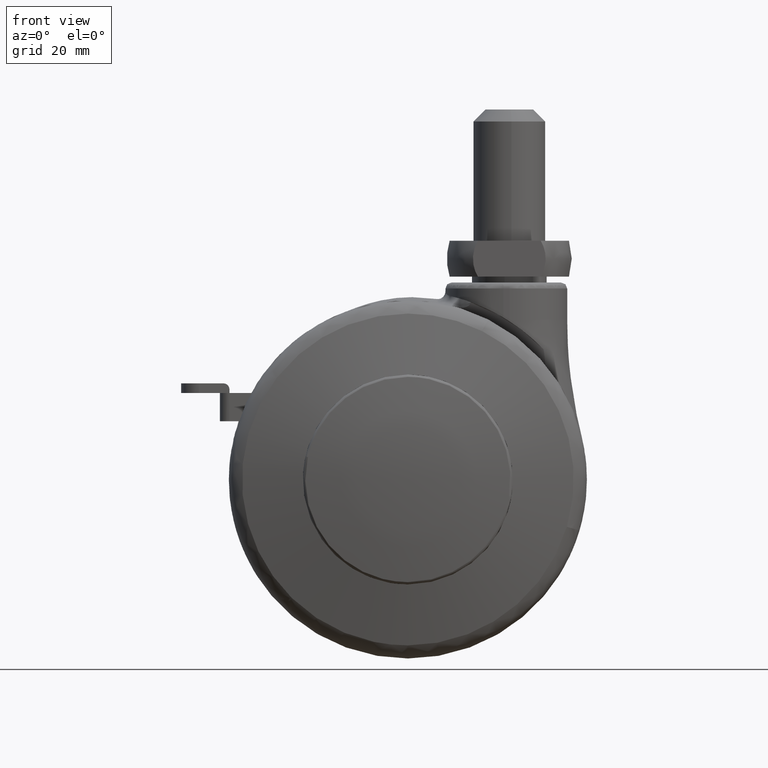
[diagram: clean part render]
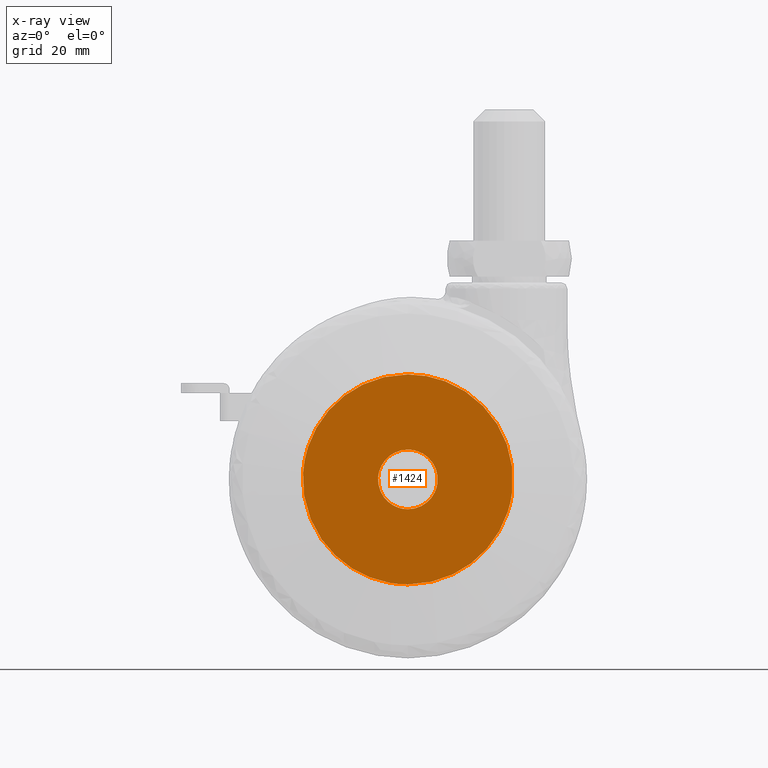
[diagram: x-ray — body ghosted, one internal face saturated and labeled with its STEP entity id]
A machine part, front view, then the same camera in x-ray: the body is ghosted and one INTERNAL B-rep face — a face not visible from any outside direction — is saturated and labeled: STEP entity #1424.
In plain terms, the highlighted face is a freeform B-spline surface patch.
Its self-contained STEP definition (entity closure, byte-faithful):
#100=CARTESIAN_POINT('',(-17.567173093975370,-17.423049182183458,1.074443803182527));
#101=VERTEX_POINT('',#100);
#107=CARTESIAN_POINT('',(0.0,-17.423049182183451,17.600000000000001));
#108=VERTEX_POINT('',#107);
#109=CARTESIAN_POINT('',(0.0,-17.423049182183451,17.600000000000001));
#110=CARTESIAN_POINT('',(-16.556436684948405,-17.423049182183458,17.599999999999998));
#111=CARTESIAN_POINT('',(-17.567173093975363,-17.423049182183462,1.074443803182527));
#119=(BOUNDED_CURVE()B_SPLINE_CURVE(2,(#109,#110,#111),.UNSPECIFIED.,.F.,.U.)B_SPLINE_CURVE_WITH_KNOTS((3,3),(0.500000000000000,0.739333065301805),.UNSPECIFIED.)CURVE()GEOMETRIC_REPRESENTATION_ITEM()RATIONAL_B_SPLINE_CURVE((1.0,0.719603872541056,0.976072262550150))REPRESENTATION_ITEM(''));
#120=EDGE_CURVE('',#108,#101,#119,.T.);
#122=CARTESIAN_POINT('',(17.476971121001860,-17.423049182183451,-2.077373446159650));
#123=VERTEX_POINT('',#122);
#124=CARTESIAN_POINT('',(17.476971121001856,-17.423049182183448,-2.077373446159650));
#125=CARTESIAN_POINT('',(17.599999999999994,-17.423049182183444,-1.042329810242494));
#126=CARTESIAN_POINT('',(17.600000000000001,-17.423049182183451,-1.653219E-015));
#127=CARTESIAN_POINT('',(17.600000000000005,-17.423049182183451,17.600000000000005));
#128=CARTESIAN_POINT('',(0.0,-17.423049182183451,17.600000000000001));
#136=(BOUNDED_CURVE()B_SPLINE_CURVE(2,(#124,#125,#126,#127,#128),.UNSPECIFIED.,.F.,.U.)B_SPLINE_CURVE_WITH_KNOTS((3,2,3),(0.229562754757628,0.250000000000000,0.500000000000000),.UNSPECIFIED.)CURVE()GEOMETRIC_REPRESENTATION_ITEM()RATIONAL_B_SPLINE_CURVE((0.956027305434425,0.976056277829127,1.0,0.707106781186548,1.0))REPRESENTATION_ITEM(''));
#137=EDGE_CURVE('',#123,#108,#136,.T.);
#185=CARTESIAN_POINT('',(0.0,-17.423049182183451,-17.600000000000001));
#186=VERTEX_POINT('',#185);
#187=CARTESIAN_POINT('',(0.0,-17.423049182183451,-17.600000000000001));
#188=CARTESIAN_POINT('',(15.631897853219106,-17.423049182183455,-17.599999999999998));
#189=CARTESIAN_POINT('',(17.476971121001860,-17.423049182183444,-2.077373446159651));
#197=(BOUNDED_CURVE()B_SPLINE_CURVE(2,(#187,#188,#189),.UNSPECIFIED.,.F.,.U.)B_SPLINE_CURVE_WITH_KNOTS((3,3),(0.0,0.229562754757628),.UNSPECIFIED.)CURVE()GEOMETRIC_REPRESENTATION_ITEM()RATIONAL_B_SPLINE_CURVE((1.0,0.731050503357421,0.956027305434425))REPRESENTATION_ITEM(''));
#198=EDGE_CURVE('',#186,#123,#197,.T.);
#200=CARTESIAN_POINT('',(-17.567173093975363,-17.423049182183462,1.074443803182527));
#201=CARTESIAN_POINT('',(-17.600000000000005,-17.423049182183455,0.537723373029767));
#202=CARTESIAN_POINT('',(-17.600000000000001,-17.423049182183451,-1.653219E-015));
#203=CARTESIAN_POINT('',(-17.600000000000005,-17.423049182183451,-17.600000000000005));
#204=CARTESIAN_POINT('',(0.0,-17.423049182183451,-17.600000000000001));
#212=(BOUNDED_CURVE()B_SPLINE_CURVE(2,(#200,#201,#202,#203,#204),.UNSPECIFIED.,.F.,.U.)B_SPLINE_CURVE_WITH_KNOTS((3,2,3),(0.739333065301805,0.750000000000000,1.0),.UNSPECIFIED.)CURVE()GEOMETRIC_REPRESENTATION_ITEM()RATIONAL_B_SPLINE_CURVE((0.976072262550150,0.987502908645491,1.0,0.707106781186548,1.0))REPRESENTATION_ITEM(''));
#213=EDGE_CURVE('',#101,#186,#212,.T.);
#256=CARTESIAN_POINT('',(4.965047631806412,-17.423049182183458,-0.590171173384073));
#257=VERTEX_POINT('',#256);
#258=CARTESIAN_POINT('',(0.0,-17.423049182183451,4.999999999999998));
#259=VERTEX_POINT('',#258);
#260=CARTESIAN_POINT('',(4.965047631806412,-17.423049182183455,-0.590171173384073));
#261=CARTESIAN_POINT('',(5.000000000000002,-17.423049182183455,-0.296120598360892));
#262=CARTESIAN_POINT('',(5.0,-17.423049182183451,-1.653219E-015));
#263=CARTESIAN_POINT('',(5.000000000000001,-17.423049182183451,4.999999999999997));
#264=CARTESIAN_POINT('',(0.0,-17.423049182183451,4.999999999999998));
#272=(BOUNDED_CURVE()B_SPLINE_CURVE(2,(#260,#261,#262,#263,#264),.UNSPECIFIED.,.F.,.U.)B_SPLINE_CURVE_WITH_KNOTS((3,2,3),(0.229562473508818,0.250000000000000,0.500000000000000),.UNSPECIFIED.)CURVE()GEOMETRIC_REPRESENTATION_ITEM()RATIONAL_B_SPLINE_CURVE((0.956026754174505,0.976055948325649,1.0,0.707106781186548,1.0))REPRESENTATION_ITEM(''));
#273=EDGE_CURVE('',#257,#259,#272,.T.);
#275=CARTESIAN_POINT('',(-4.990673992102717,-17.423049182183451,0.305242697782475));
#276=VERTEX_POINT('',#275);
#277=CARTESIAN_POINT('',(0.0,-17.423049182183451,4.999999999999998));
#278=CARTESIAN_POINT('',(-4.703530334324142,-17.423049182183451,4.999999999999998));
#279=CARTESIAN_POINT('',(-4.990673992102717,-17.423049182183451,0.305242697782475));
#287=(BOUNDED_CURVE()B_SPLINE_CURVE(2,(#277,#278,#279),.UNSPECIFIED.,.F.,.U.)B_SPLINE_CURVE_WITH_KNOTS((3,3),(0.500000000000000,0.739332962234486),.UNSPECIFIED.)CURVE()GEOMETRIC_REPRESENTATION_ITEM()RATIONAL_B_SPLINE_CURVE((1.0,0.719603993291931,0.976072041657167))REPRESENTATION_ITEM(''));
#288=EDGE_CURVE('',#259,#276,#287,.T.);
#355=CARTESIAN_POINT('',(0.0,-17.423049182183451,-5.000000000000002));
#356=VERTEX_POINT('',#355);
#357=CARTESIAN_POINT('',(0.0,-17.423049182183451,-5.000000000000002));
#358=CARTESIAN_POINT('',(4.440872629576191,-17.423049182183448,-5.000000000000002));
#359=CARTESIAN_POINT('',(4.965047631806412,-17.423049182183458,-0.590171173384073));
#367=(BOUNDED_CURVE()B_SPLINE_CURVE(2,(#357,#358,#359),.UNSPECIFIED.,.F.,.U.)B_SPLINE_CURVE_WITH_KNOTS((3,3),(0.0,0.229562473508818),.UNSPECIFIED.)CURVE()GEOMETRIC_REPRESENTATION_ITEM()RATIONAL_B_SPLINE_CURVE((1.0,0.731050832860898,0.956026754174505))REPRESENTATION_ITEM(''));
#368=EDGE_CURVE('',#356,#257,#367,.T.);
#402=CARTESIAN_POINT('',(-4.990673992102717,-17.423049182183448,0.305242697782475));
#403=CARTESIAN_POINT('',(-5.0,-17.423049182183455,0.152763816601438));
#404=CARTESIAN_POINT('',(-5.0,-17.423049182183451,-1.653219E-015));
#405=CARTESIAN_POINT('',(-5.000000000000001,-17.423049182183451,-5.000000000000002));
#406=CARTESIAN_POINT('',(0.0,-17.423049182183451,-5.000000000000002));
#414=(BOUNDED_CURVE()B_SPLINE_CURVE(2,(#402,#403,#404,#405,#406),.UNSPECIFIED.,.F.,.U.)B_SPLINE_CURVE_WITH_KNOTS((3,2,3),(0.739332962234487,0.750000000000000,1.0),.UNSPECIFIED.)CURVE()GEOMETRIC_REPRESENTATION_ITEM()RATIONAL_B_SPLINE_CURVE((0.976072041657168,0.987502787894617,1.0,0.707106781186548,1.0))REPRESENTATION_ITEM(''));
#415=EDGE_CURVE('',#276,#356,#414,.T.);
#1407=CARTESIAN_POINT('',(-19.357811563419300,-17.423049182183451,19.358240592640399));
#1408=CARTESIAN_POINT('',(-19.357811563419300,-17.423049182183451,-19.358240907352929));
#1409=CARTESIAN_POINT('',(19.357919824527698,-17.423049182183451,19.358240592640399));
#1410=CARTESIAN_POINT('',(19.357919824527698,-17.423049182183451,-19.358240907352929));
#1411=B_SPLINE_SURFACE_WITH_KNOTS('',1,1,((#1407,#1409),(#1408,#1410)),.UNSPECIFIED.,.F.,.F.,.U.,(2,2),(2,2),(0.0,38.716481499993321),(0.0,38.715731387946988),.UNSPECIFIED.);
#1412=ORIENTED_EDGE('',*,*,#198,.T.);
#1413=ORIENTED_EDGE('',*,*,#137,.T.);
#1414=ORIENTED_EDGE('',*,*,#120,.T.);
#1415=ORIENTED_EDGE('',*,*,#213,.T.);
#1416=EDGE_LOOP('',(#1412,#1413,#1414,#1415));
#1417=FACE_OUTER_BOUND('',#1416,.T.);
#1418=ORIENTED_EDGE('',*,*,#288,.F.);
#1419=ORIENTED_EDGE('',*,*,#273,.F.);
#1420=ORIENTED_EDGE('',*,*,#368,.F.);
#1421=ORIENTED_EDGE('',*,*,#415,.F.);
#1422=EDGE_LOOP('',(#1418,#1419,#1420,#1421));
#1423=FACE_BOUND('',#1422,.T.);
#1424=ADVANCED_FACE('',(#1417,#1423),#1411,.T.);